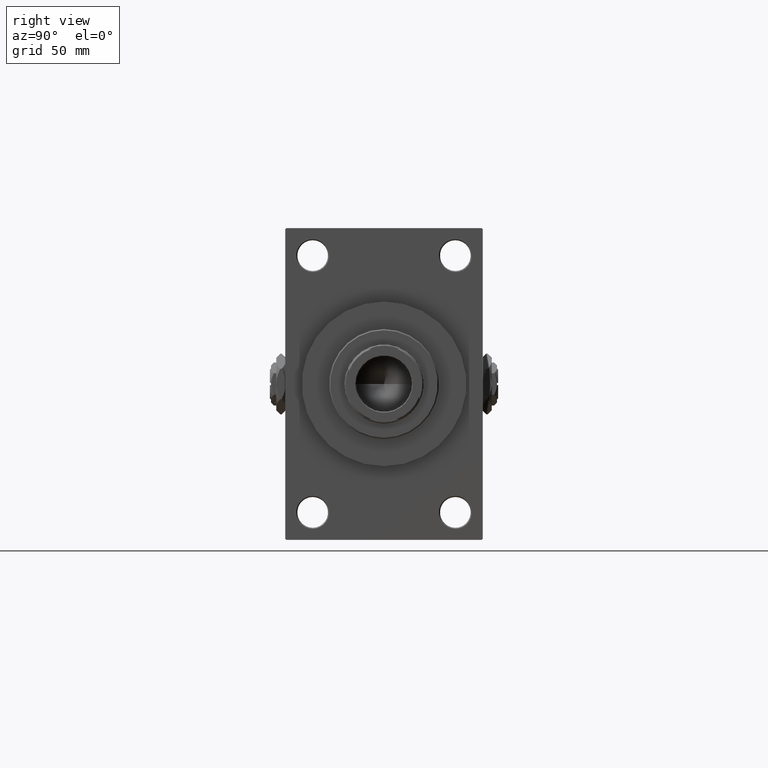
[diagram: clean part render]
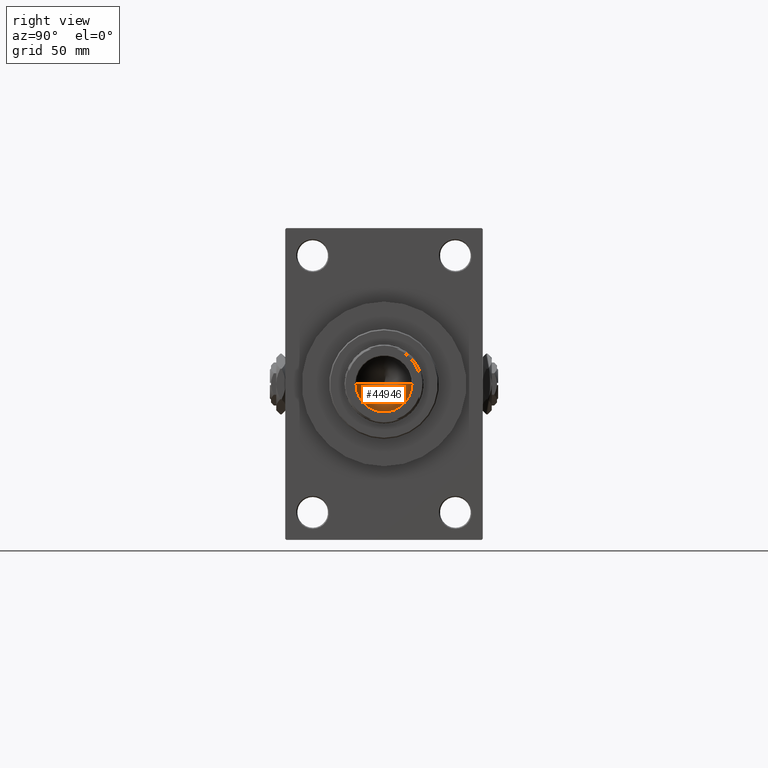
[diagram: same view with one face highlighted and labeled with its STEP entity id]
A machine part, right view. The second image highlights one B-rep face of the part: STEP entity #44946.
In plain terms, the highlighted conical surface has half-angle 59 deg.
Its self-contained STEP definition (entity closure, byte-faithful):
#1065 = ORIENTED_EDGE ( 'NONE', *, *, #46342, .F. ) ;
#1631 = CIRCLE ( 'NONE', #35620, 12.74999999999999112 ) ;
#1924 = CARTESIAN_POINT ( 'NONE',  ( 0.000000000000000000, 0.000000000000000000, 185.0000000000000000 ) ) ;
#2743 = CARTESIAN_POINT ( 'NONE',  ( 12.74999999999999112, 0.000000000000000000, 185.0000000000000000 ) ) ;
#4785 = ORIENTED_EDGE ( 'NONE', *, *, #46402, .T. ) ;
#5002 = ORIENTED_EDGE ( 'NONE', *, *, #24480, .T. ) ;
#7637 = AXIS2_PLACEMENT_3D ( 'NONE', #10133, #13355, #47038 ) ;
#9019 = CARTESIAN_POINT ( 'NONE',  ( -1.323906893019387300E-14, 0.000000000000000000, 177.3390271073986355 ) ) ;
#9143 = VECTOR ( 'NONE', #18666, 1000.000000000000114 ) ;
#9293 = DIRECTION ( 'NONE',  ( -0.8571673007021125557, 1.049727191138618942E-16, 0.5150380749100536004 ) ) ;
#10133 = CARTESIAN_POINT ( 'NONE',  ( 0.000000000000000000, 0.000000000000000000, 185.0000000000000000 ) ) ;
#13004 = CARTESIAN_POINT ( 'NONE',  ( -12.74999999999999112, 1.561424668912874125E-15, 185.0000000000000000 ) ) ;
#13355 = DIRECTION ( 'NONE',  ( -0.000000000000000000, -0.000000000000000000, 1.000000000000000000 ) ) ;
#18424 = LINE ( 'NONE', #44925, #9143 ) ;
#18666 = DIRECTION ( 'NONE',  ( 0.8571673007021125557, 0.000000000000000000, 0.5150380749100536004 ) ) ;
#19155 = EDGE_LOOP ( 'NONE', ( #1065, #4785, #5002 ) ) ;
#23343 = VECTOR ( 'NONE', #9293, 1000.000000000000114 ) ;
#24194 = CARTESIAN_POINT ( 'NONE',  ( -12.74999999999999112, 1.561424668912874125E-15, 185.0000000000000000 ) ) ;
#24480 = EDGE_CURVE ( 'NONE', #28873, #44309, #1631, .T. ) ;
#25656 = DIRECTION ( 'NONE',  ( -0.000000000000000000, -0.000000000000000000, 1.000000000000000000 ) ) ;
#28227 = FACE_OUTER_BOUND ( 'NONE', #19155, .T. ) ;
#28873 = VERTEX_POINT ( 'NONE', #2743 ) ;
#32124 = DIRECTION ( 'NONE',  ( 1.000000000000000000, 0.000000000000000000, 0.000000000000000000 ) ) ;
#35554 = LINE ( 'NONE', #13004, #23343 ) ;
#35620 = AXIS2_PLACEMENT_3D ( 'NONE', #1924, #25656, #32124 ) ;
#39777 = VERTEX_POINT ( 'NONE', #9019 ) ;
#44309 = VERTEX_POINT ( 'NONE', #24194 ) ;
#44925 = CARTESIAN_POINT ( 'NONE',  ( 12.74999999999999112, 0.000000000000000000, 185.0000000000000000 ) ) ;
#44946 = ADVANCED_FACE ( 'NONE', ( #28227 ), #45587, .F. ) ;
#45587 = CONICAL_SURFACE ( 'NONE', #7637, 12.74999999999999112, 1.029744258676655200 ) ;
#46342 = EDGE_CURVE ( 'NONE', #39777, #44309, #35554, .T. ) ;
#46402 = EDGE_CURVE ( 'NONE', #39777, #28873, #18424, .T. ) ;
#47038 = DIRECTION ( 'NONE',  ( 1.000000000000000000, 0.000000000000000000, 0.000000000000000000 ) ) ;